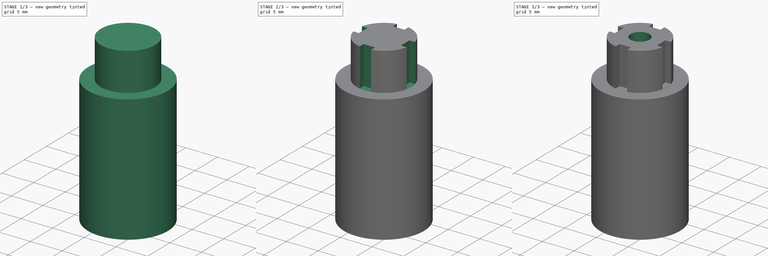
[diagram: build sequence overview — one tinted view per stage of 3, left to right]
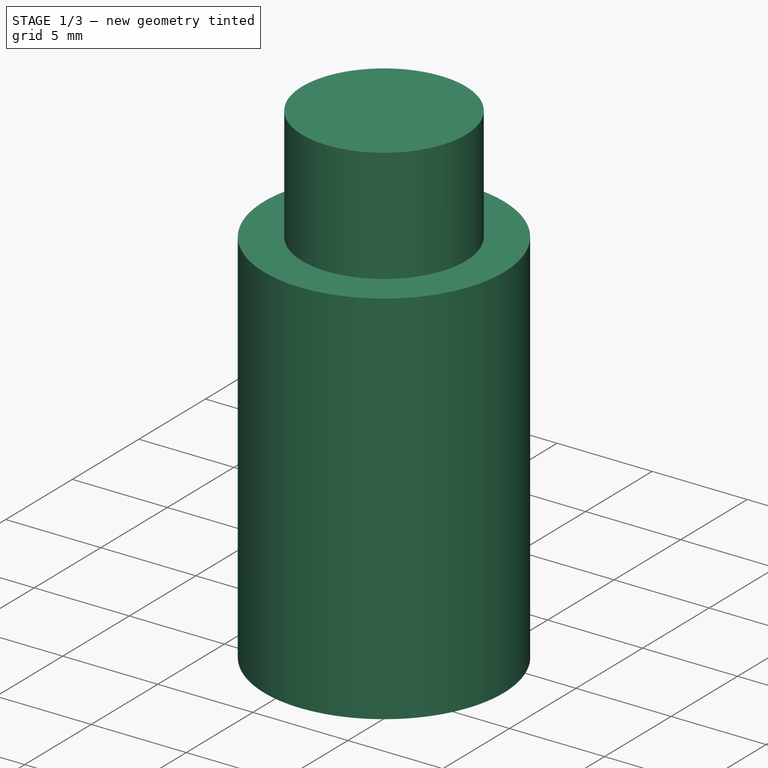
[diagram: stage 1 of 3 — iso view after this stage's code; geometry added in this stage tinted green]
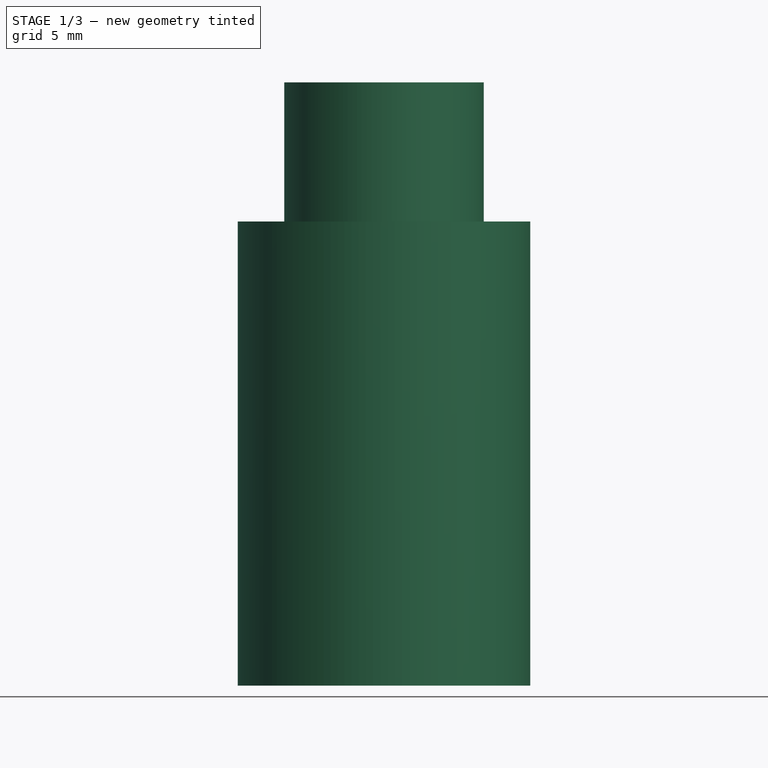
[diagram: stage 1 of 3 — front view after this stage's code; geometry added in this stage tinted green]
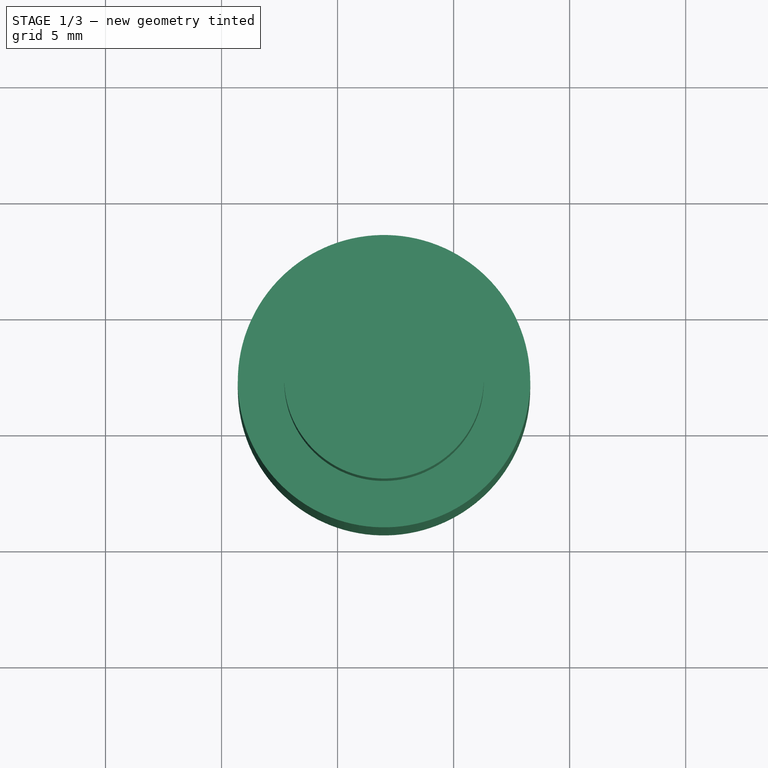
[diagram: stage 1 of 3 — top view after this stage's code; geometry added in this stage tinted green]
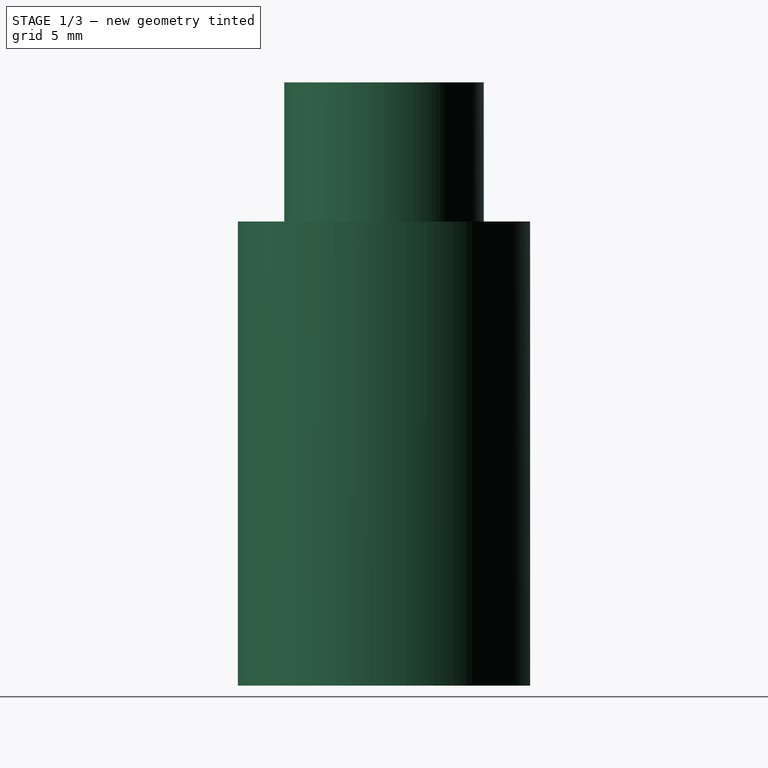
[diagram: stage 1 of 3 — right view after this stage's code; geometry added in this stage tinted green]
FCSTD DOCUMENT  (FreeCAD 0.21R33771 (Git))
Label: mirror-enlarge-short
License: All rights reserved
LicenseURL: https://en.wikipedia.org/wiki/All_rights_reserved
objects: Sketcher::SketchObject×6, PartDesign::Pad×3, PartDesign::Pocket×3, PartDesign::Body×1
note: 19 computed .brp shape members not serialized (recipe doc carries the construction recipe); baked Part::Feature solids carry a one-line shape summary decoded from their .brp

FEATURE [Sketcher::SketchObject] Sketch
  FullyConstrained = true
  MapMode = 5
  Support = -> [XY_Plane]
  sketch-geometry (1):
    g0: Circle CenterX=7 CenterY=7 CenterZ=0 NormalX=0 NormalY=0 NormalZ=1 AngleXU=0 Radius=6.3
  constraints (3):
    c: DistanceX(g0) = 7
    c: DistanceY(g0) = 7
    c: Diameter(g0) = 12.6
FEATURE [PartDesign::Pad] Pad
  Direction = (0,0,1)
  Length = 20
  Length2 = 10
  Profile = -> Sketch
  ReferenceAxis = -> Sketch [N_Axis]
  Type = 0
FEATURE [Sketcher::SketchObject] Sketch001
  FullyConstrained = true
  MapMode = 5
  Placement = pos=(0,0,20) rot=(0,0,1;0rad)
  Support = -> [Pad]
  sketch-geometry (1):
    g0: Circle CenterX=7 CenterY=7 CenterZ=0 NormalX=0 NormalY=0 NormalZ=1 AngleXU=0 Radius=4.3
  constraints (3):
    c: DistanceX(g0) = 7
    c: DistanceY(g0) = 7
    c: Diameter(g0) = 8.6
FEATURE [PartDesign::Pad] Pad001
  BaseFeature = -> Pad
  Direction = (0,0,1)
  Length = 6
  Length2 = 10
  Profile = -> Sketch001
  ReferenceAxis = -> Sketch001 [N_Axis]
  Type = 0
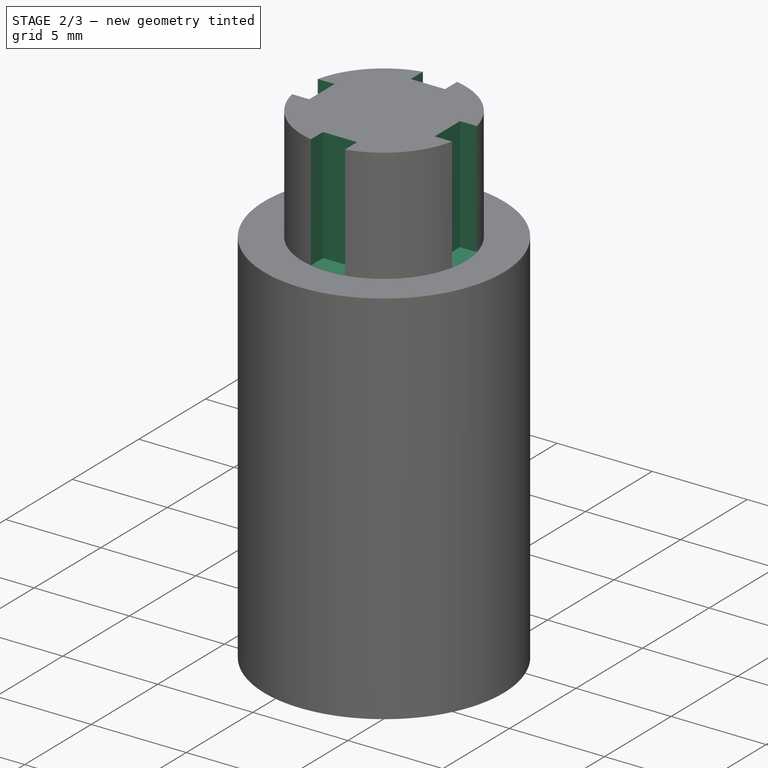
[diagram: stage 2 of 3 — iso view after this stage's code; geometry added in this stage tinted green]
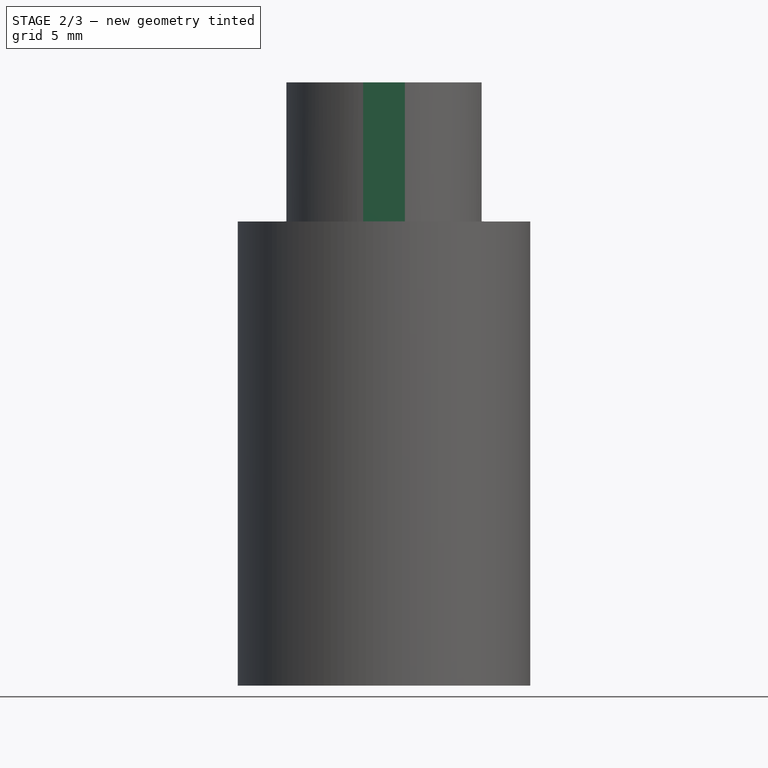
[diagram: stage 2 of 3 — front view after this stage's code; geometry added in this stage tinted green]
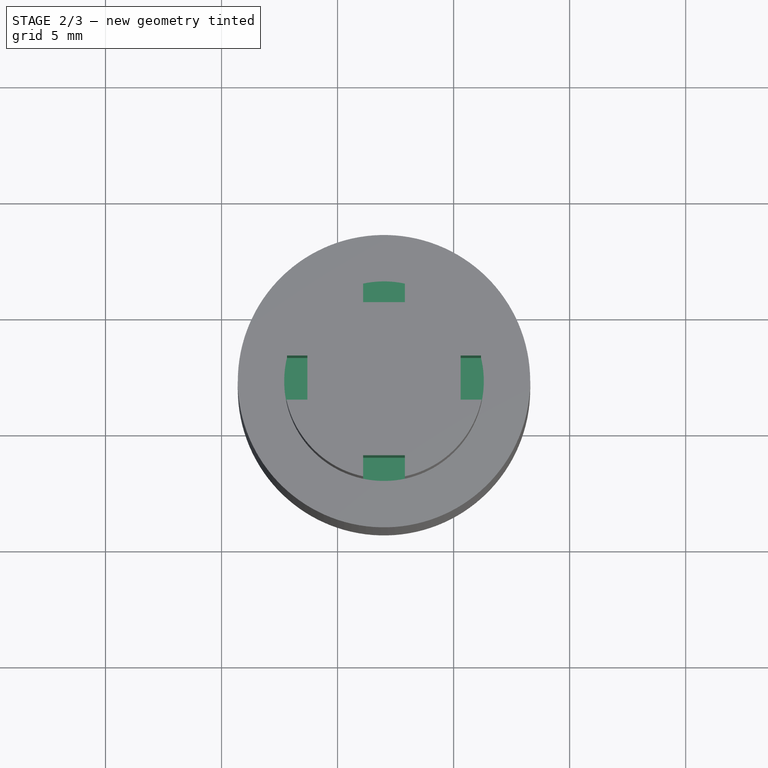
[diagram: stage 2 of 3 — top view after this stage's code; geometry added in this stage tinted green]
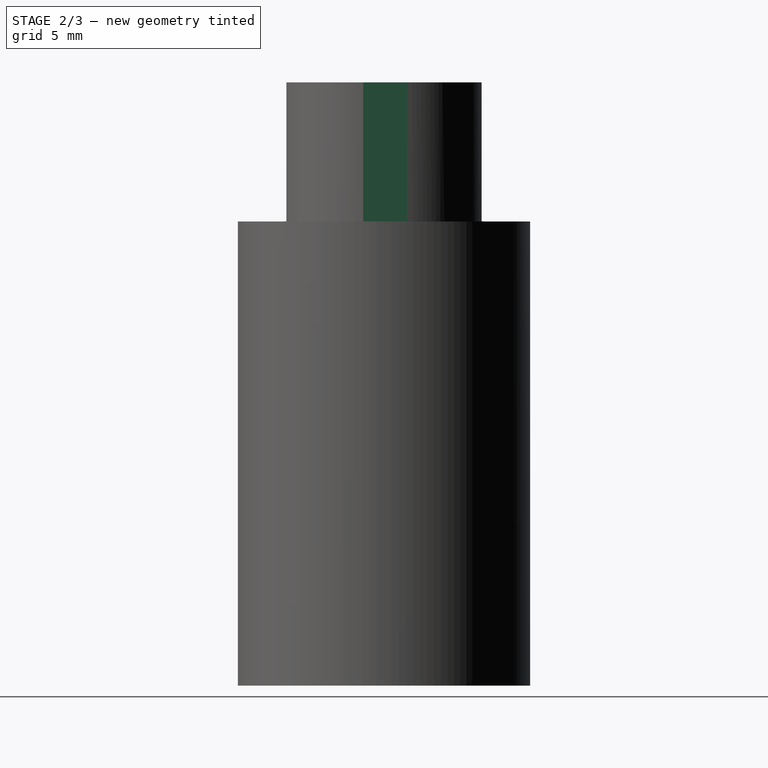
[diagram: stage 2 of 3 — right view after this stage's code; geometry added in this stage tinted green]
FEATURE [Sketcher::SketchObject] Sketch002
  FullyConstrained = true
  MapMode = 5
  Placement = pos=(0,0,26) rot=(0,0,1;0rad)
  Support = -> [Pad001]
  sketch-geometry (16):
    g0: LineSegment StartX=6.1 StartY=12 StartZ=0 EndX=7.9 EndY=12 EndZ=0
    g1: LineSegment StartX=7.9 StartY=12 StartZ=0 EndX=7.9 EndY=10.3 EndZ=0
    g2: LineSegment StartX=7.9 StartY=10.3 StartZ=0 EndX=6.1 EndY=10.3 EndZ=0
    g3: LineSegment StartX=6.1 StartY=10.3 StartZ=0 EndX=6.1 EndY=12 EndZ=0
    g4: LineSegment StartX=6.1 StartY=3.7 StartZ=0 EndX=7.9 EndY=3.7 EndZ=0
    g5: LineSegment StartX=7.9 StartY=3.7 StartZ=0 EndX=7.9 EndY=2 EndZ=0
    g6: LineSegment StartX=7.9 StartY=2 StartZ=0 EndX=6.1 EndY=2 EndZ=0
    g7: LineSegment StartX=6.1 StartY=2 StartZ=0 EndX=6.1 EndY=3.7 EndZ=0
    g8: LineSegment StartX=2.3 StartY=8 StartZ=0 EndX=3.7 EndY=8 EndZ=0
    g9: LineSegment StartX=3.7 StartY=8 StartZ=0 EndX=3.7 EndY=6.1 EndZ=0
    g10: LineSegment StartX=3.7 StartY=6.1 StartZ=0 EndX=2.3 EndY=6.1 EndZ=0
    g11: LineSegment StartX=2.3 StartY=6.1 StartZ=0 EndX=2.3 EndY=8 EndZ=0
    g12: LineSegment StartX=10.3 StartY=8 StartZ=0 EndX=12 EndY=8 EndZ=0
    g13: LineSegment StartX=12 StartY=8 StartZ=0 EndX=12 EndY=6.1 EndZ=0
    g14: LineSegment StartX=12 StartY=6.1 StartZ=0 EndX=10.3 EndY=6.1 EndZ=0
    g15: LineSegment StartX=10.3 StartY=6.1 StartZ=0 EndX=10.3 EndY=8 EndZ=0
  constraints (48):
    c: Coincident(g0,g1)
    c: Coincident(g1,g2)
    c: Coincident(g2,g3)
    c: Coincident(g3,g0)
    c: Horizontal(g0)
    c: Horizontal(g2)
    c: Vertical(g1)
    c: Vertical(g3)
    c: DistanceX(g2) = 6.1
    c: DistanceY(g2) = 10.3
    c: DistanceX(g0) = 7.9
    c: DistanceY(g0) = 12
    c: Coincident(g4,g5)
    c: Coincident(g5,g6)
    c: Coincident(g6,g7)
    c: Coincident(g7,g4)
    c: Horizontal(g4)
    c: Horizontal(g6)
    c: Vertical(g5)
    c: Vertical(g7)
    c: DistanceX(g4) = 6.1
    c: DistanceY(g4) = 3.7
    c: DistanceX(g5) = 7.9
    c: DistanceY(g5) = 2
    c: Coincident(g8,g9)
    c: Coincident(g9,g10)
    c: Coincident(g10,g11)
    c: Coincident(g11,g8)
    c: Horizontal(g8)
    c: Horizontal(g10)
    c: Vertical(g9)
    c: Vertical(g11)
    c: DistanceX(g8) = 3.7
    c: DistanceY(g8) = 8
    c: DistanceX(g10) = 2.3
    c: DistanceY(g10) = 6.1
    c: Coincident(g12,g13)
    c: Coincident(g13,g14)
    c: Coincident(g14,g15)
    c: Coincident(g15,g12)
    c: Horizontal(g12)
    c: Horizontal(g14)
    c: Vertical(g13)
    c: Vertical(g15)
    c: DistanceX(g12) = 10.3
    c: DistanceY(g12) = 8
    c: DistanceX(g13) = 12
    c: DistanceY(g13) = 6.1
FEATURE [PartDesign::Pocket] Pocket
  BaseFeature = -> Pad001
  Direction = (0,0,-1)
  Length = 5.99
  Length2 = 5
  Profile = -> Sketch002
  ReferenceAxis = -> Sketch002 [N_Axis]
  Type = 0
FEATURE [Sketcher::SketchObject] Sketch003
  FullyConstrained = true
  MapMode = 5
  Placement = pos=(0,0,0) rot=(1,0,0;3.14159rad)
  Support = -> [Pocket]
  sketch-geometry (1):
    g0: Circle CenterX=7 CenterY=-7 CenterZ=0 NormalX=0 NormalY=0 NormalZ=1 AngleXU=0 Radius=4.5
  constraints (3):
    c: DistanceX(g0) = 7
    c: DistanceY(g0) = -7
    c: Diameter(g0) = 9
FEATURE [PartDesign::Pocket] Pocket001
  BaseFeature = -> Pocket
  Direction = (0,0,1)
  Length = 7
  Length2 = 5
  Profile = -> Sketch003
  ReferenceAxis = -> Sketch003 [N_Axis]
  Type = 0
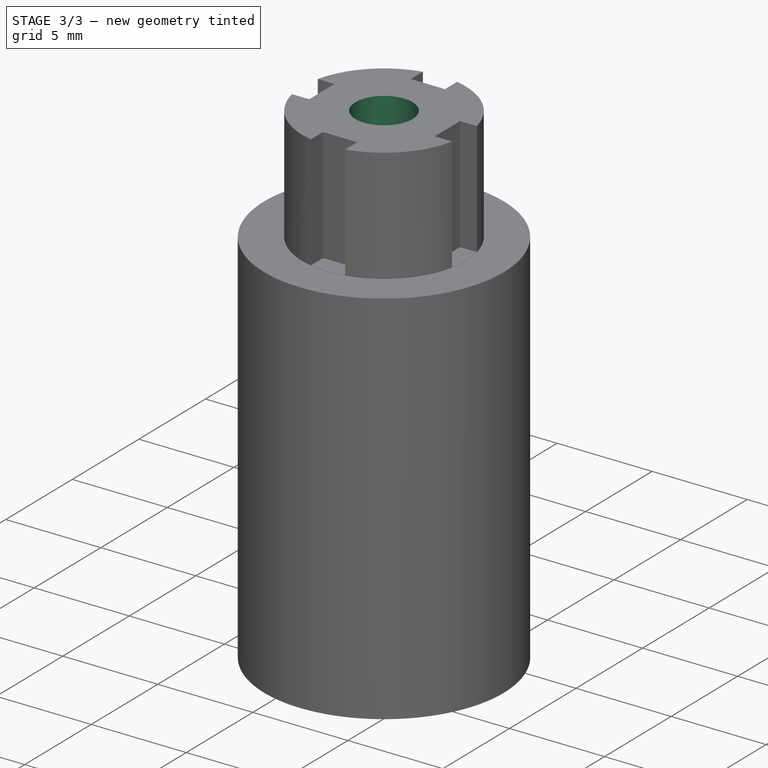
[diagram: stage 3 of 3 — iso view after this stage's code; geometry added in this stage tinted green]
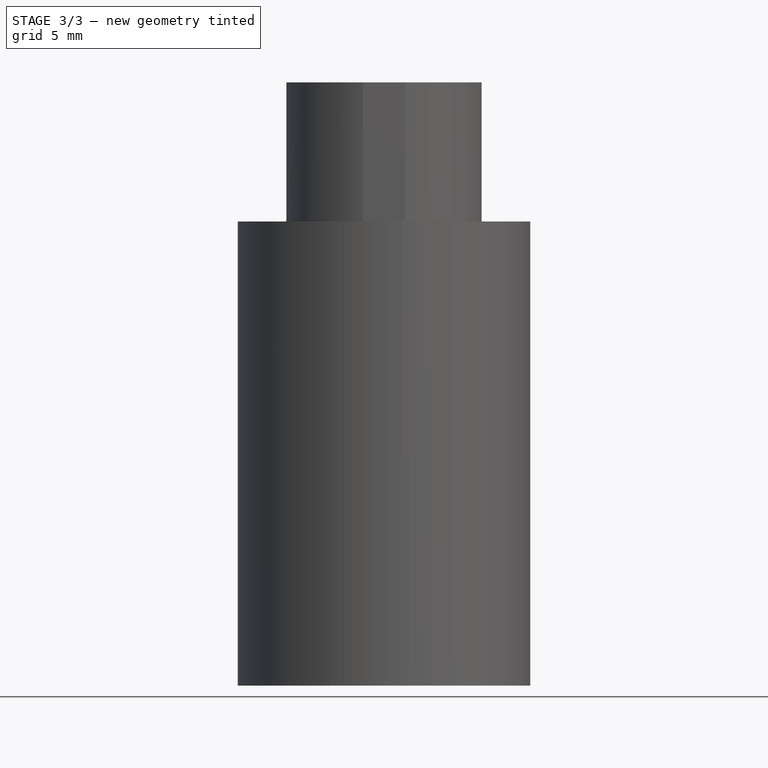
[diagram: stage 3 of 3 — front view after this stage's code; geometry added in this stage tinted green]
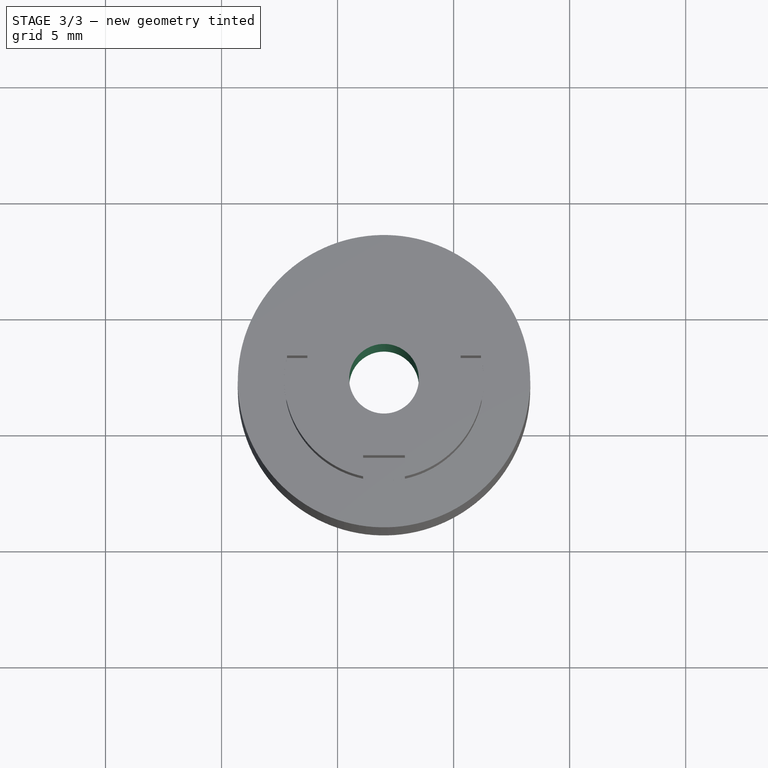
[diagram: stage 3 of 3 — top view after this stage's code; geometry added in this stage tinted green]
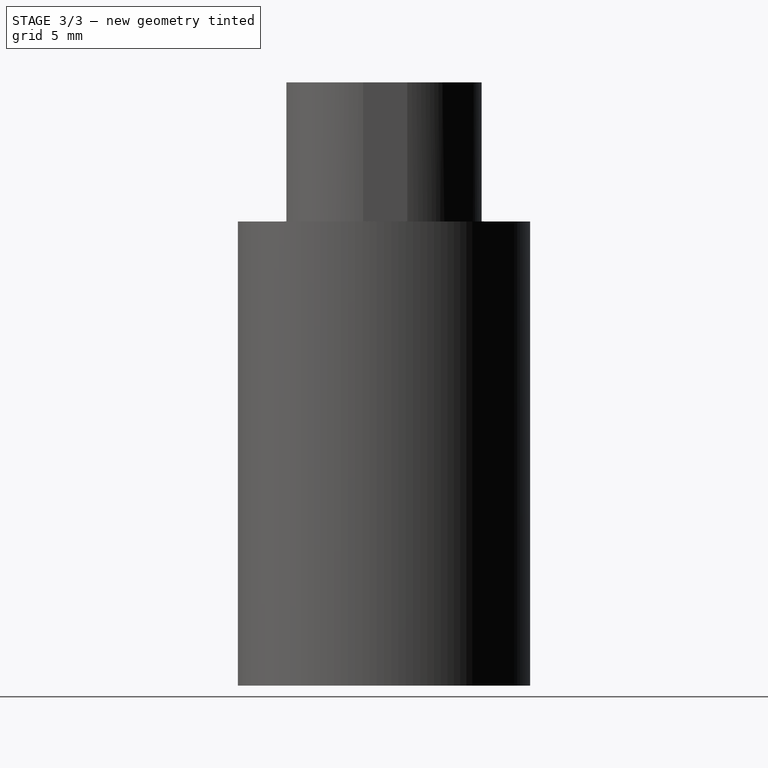
[diagram: stage 3 of 3 — right view after this stage's code; geometry added in this stage tinted green]
FEATURE [Sketcher::SketchObject] Sketch004
  FullyConstrained = true
  MapMode = 5
  Placement = pos=(0,0,7) rot=(1,0,0;3.14159rad)
  Support = -> [Pocket001]
  sketch-geometry (16):
    g0: LineSegment StartX=6.35 StartY=-2.15 StartZ=0 EndX=7.65 EndY=-2.15 EndZ=0
    g1: LineSegment StartX=7.65 StartY=-2.15 StartZ=0 EndX=7.65 EndY=-3.65 EndZ=0
    g2: LineSegment StartX=7.65 StartY=-3.65 StartZ=0 EndX=6.35 EndY=-3.65 EndZ=0
    g3: LineSegment StartX=6.35 StartY=-3.65 StartZ=0 EndX=6.35 EndY=-2.15 EndZ=0
    g4: LineSegment StartX=6.35 StartY=-10.35 StartZ=0 EndX=7.65 EndY=-10.35 EndZ=0
    g5: LineSegment StartX=7.65 StartY=-10.35 StartZ=0 EndX=7.65 EndY=-11.85 EndZ=0
    g6: LineSegment StartX=7.65 StartY=-11.85 StartZ=0 EndX=6.35 EndY=-11.85 EndZ=0
    g7: LineSegment StartX=6.35 StartY=-11.85 StartZ=0 EndX=6.35 EndY=-10.35 EndZ=0
    g8: LineSegment StartX=11.85 StartY=-6.35 StartZ=0 EndX=10.35 EndY=-6.35 EndZ=0
    g9: LineSegment StartX=10.35 StartY=-6.35 StartZ=0 EndX=10.35 EndY=-7.65 EndZ=0
    g10: LineSegment StartX=10.35 StartY=-7.65 StartZ=0 EndX=11.85 EndY=-7.65 EndZ=0
    g11: LineSegment StartX=11.85 StartY=-7.65 StartZ=0 EndX=11.85 EndY=-6.35 EndZ=0
    g12: LineSegment StartX=3.65 StartY=-6.35 StartZ=0 EndX=2.15 EndY=-6.35 EndZ=0
    g13: LineSegment StartX=2.15 StartY=-6.35 StartZ=0 EndX=2.15 EndY=-7.65 EndZ=0
    g14: LineSegment StartX=2.15 StartY=-7.65 StartZ=0 EndX=3.65 EndY=-7.65 EndZ=0
    g15: LineSegment StartX=3.65 StartY=-7.65 StartZ=0 EndX=3.65 EndY=-6.35 EndZ=0
  constraints (48):
    c: Coincident(g0,g1)
    c: Coincident(g1,g2)
    c: Coincident(g2,g3)
    c: Coincident(g3,g0)
    c: Horizontal(g0)
    c: Horizontal(g2)
    c: Vertical(g1)
    c: Vertical(g3)
    c: DistanceX(g2) = 6.35
    c: DistanceY(g2) = -3.65
    c: DistanceY(g1,g1) = 1.5
    c: DistanceX(g2,g2) = 1.3
    c: Coincident(g4,g5)
    c: Coincident(g5,g6)
    c: Coincident(g6,g7)
    c: Coincident(g7,g4)
    c: Horizontal(g4)
    c: Horizontal(g6)
    c: Vertical(g5)
    c: Vertical(g7)
    c: DistanceX(g4) = 6.35
    c: DistanceY(g4) = -10.35
    c: DistanceX(g4,g4) = 1.3
    c: DistanceY(g5,g5) = 1.5
    c: Coincident(g8,g9)
    c: Coincident(g9,g10)
    c: Coincident(g10,g11)
    c: Coincident(g11,g8)
    c: Horizontal(g8)
    c: Horizontal(g10)
    c: Vertical(g9)
    c: Vertical(g11)
    c: DistanceX(g8) = 10.35
    c: DistanceY(g8) = -6.35
    c: DistanceY(g9,g9) = 1.3
    c: DistanceX(g10,g10) = 1.5
    c: Coincident(g12,g13)
    c: Coincident(g13,g14)
    c: Coincident(g14,g15)
    c: Coincident(g15,g12)
    c: Horizontal(g12)
    c: Horizontal(g14)
    c: Vertical(g13)
    c: Vertical(g15)
    c: DistanceX(g12) = 3.65
    c: DistanceY(g12) = -6.35
    c: DistanceY(g15,g15) = 1.3
    c: DistanceX(g14,g14) = 1.5
FEATURE [PartDesign::Pad] Pad002
  BaseFeature = -> Pocket001
  Direction = (0,0,-1)
  Length = 7
  Length2 = 10
  Profile = -> Sketch004
  ReferenceAxis = -> Sketch004 [N_Axis]
  Type = 0
FEATURE [Sketcher::SketchObject] Sketch005
  FullyConstrained = true
  MapMode = 5
  Placement = pos=(0,0,26) rot=(0,0,1;0rad)
  Support = -> [Pad002]
  sketch-geometry (1):
    g0: Circle CenterX=7 CenterY=7 CenterZ=0 NormalX=0 NormalY=0 NormalZ=1 AngleXU=0 Radius=1.5
  constraints (3):
    c: DistanceX(g0) = 7
    c: DistanceY(g0) = 7
    c: Diameter(g0) = 3
FEATURE [PartDesign::Pocket] Pocket002
  BaseFeature = -> Pad002
  Direction = (0,0,-1)
  Length = 50
  Length2 = 5
  Profile = -> Sketch005
  ReferenceAxis = -> Sketch005 [N_Axis]
  Type = 0
FEATURE [PartDesign::Body] Body
  Group = -> [Sketch,Pad,Sketch001,Pad001,Sketch002,Pocket,Sketch003,Pocket001,Sketch004,Pad002,Sketch005,Pocket002]
  Origin = -> Origin
  Tip = -> Pocket002
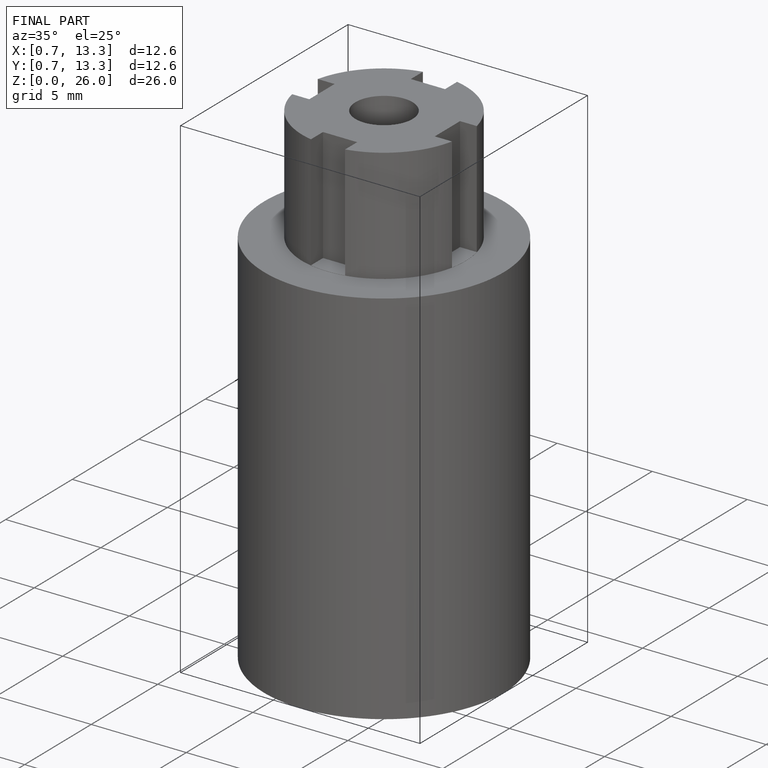
[diagram: finished part — iso view with bounding-box wireframe]
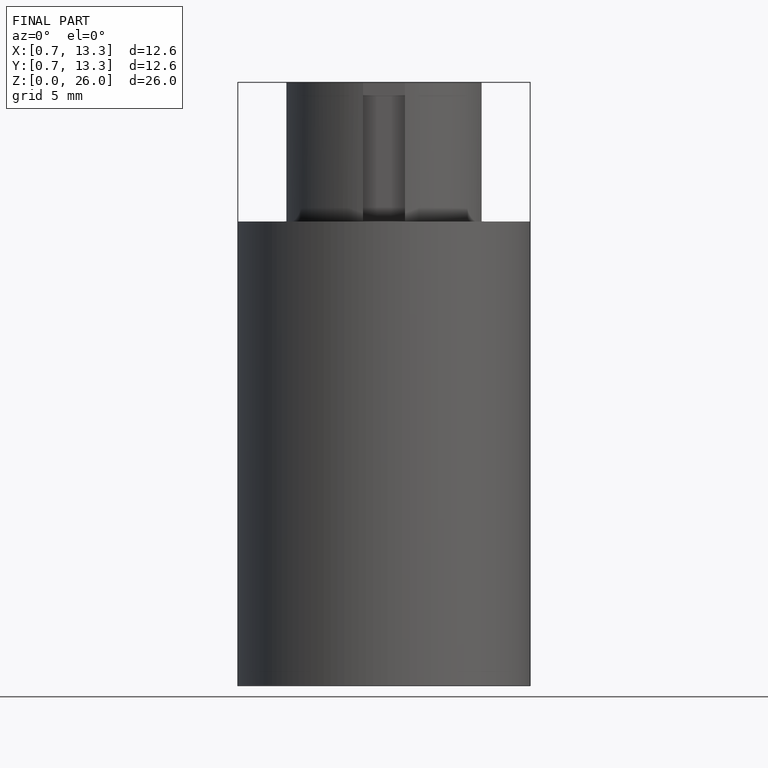
[diagram: finished part — front view with bounding-box wireframe]
